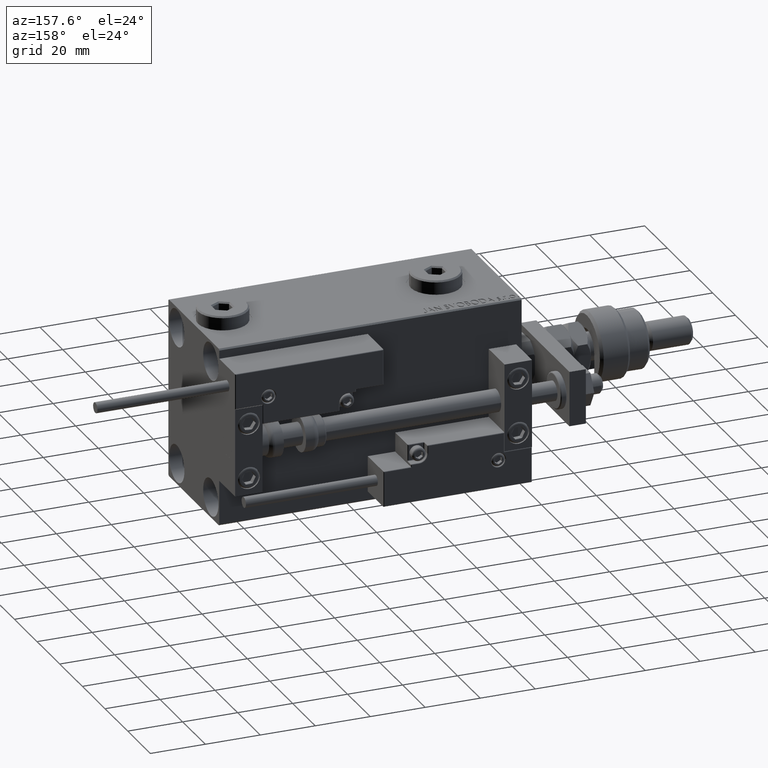
[diagram: clean part render]
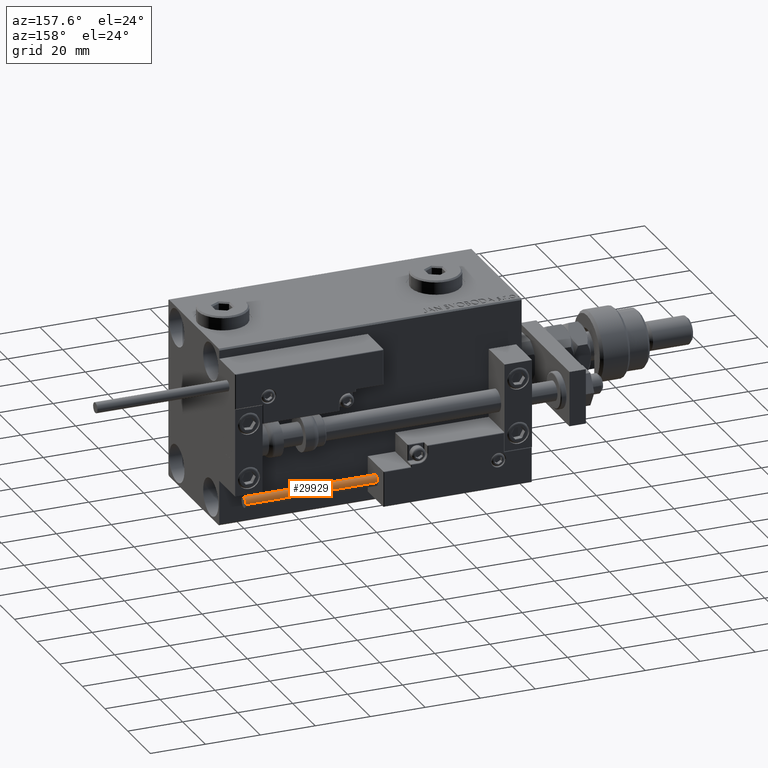
[diagram: same view with one face highlighted and labeled with its STEP entity id]
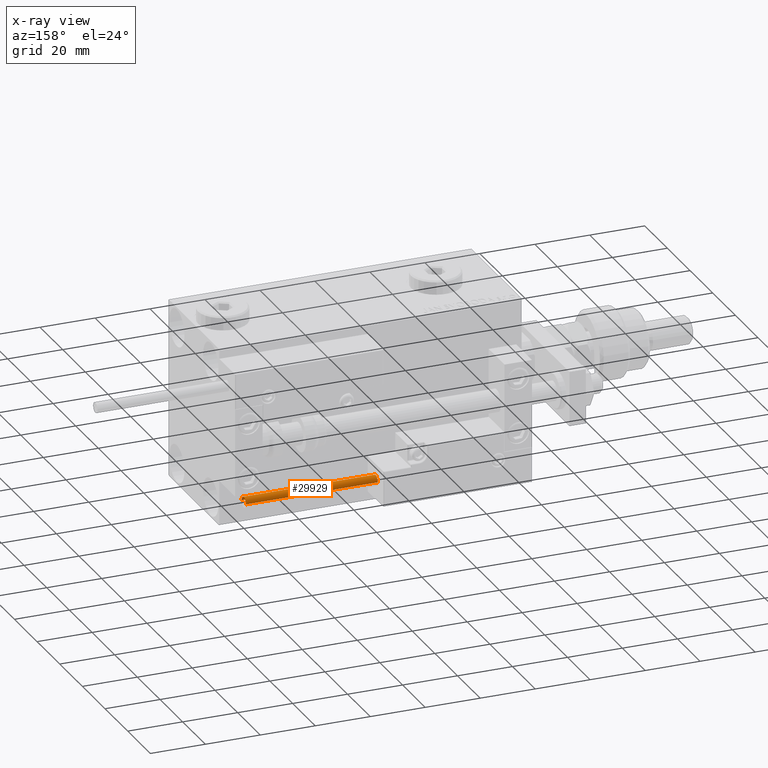
[diagram: x-ray of the same camera — body ghosted, the highlighted face saturated]
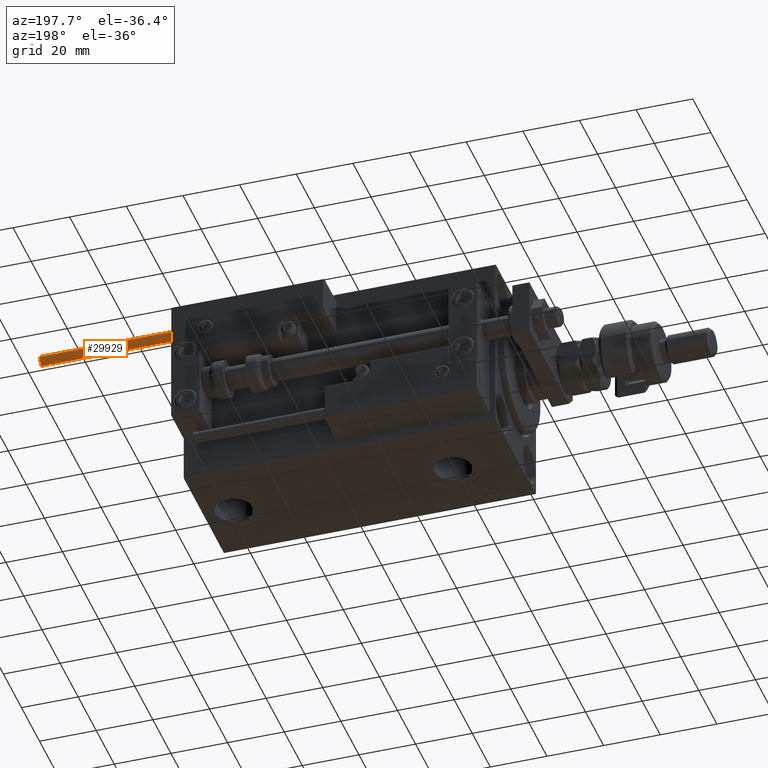
[diagram: same view with one face highlighted and labeled with its STEP entity id]
A machine part, auxiliary view. The second image highlights one B-rep face of the part: STEP entity #29929.
The next image is the same camera in x-ray: the body ghosted, the highlighted face saturated — about 0% of this face is hidden behind the body in this view.
A second angle (auxiliary view) of the same face is appended — the face is thin or edge-on in the first view.
In plain terms, the highlighted cylindrical surface (edge-blend (fillet) strip) has radius 1.9 mm, axis along (-1, -0, 0).
Its self-contained STEP definition (entity closure, byte-faithful):
#942 = EDGE_CURVE ( 'NONE', #24929, #16733, #7941, .T. ) ;
#1034 = CYLINDRICAL_SURFACE ( 'NONE', #50461, 1.899999999999999467 ) ;
#5496 = CARTESIAN_POINT ( 'NONE',  ( -1.899999999999999467, 0.000000000000000000, 48.00000000000000000 ) ) ;
#7459 = VERTEX_POINT ( 'NONE', #35082 ) ;
#7786 = DIRECTION ( 'NONE',  ( 1.000000000000000000, 0.000000000000000000, 0.000000000000000000 ) ) ;
#7941 = LINE ( 'NONE', #8477, #12145 ) ;
#7942 = ORIENTED_EDGE ( 'NONE', *, *, #45944, .F. ) ;
#8267 = EDGE_CURVE ( 'NONE', #16733, #7459, #35787, .T. ) ;
#8477 = CARTESIAN_POINT ( 'NONE',  ( 1.899999999999999467, 2.326828918379970872E-16, 48.00000000000000000 ) ) ;
#8480 = FACE_OUTER_BOUND ( 'NONE', #27502, .T. ) ;
#10404 = DIRECTION ( 'NONE',  ( -0.000000000000000000, -0.000000000000000000, -1.000000000000000000 ) ) ;
#11900 = CARTESIAN_POINT ( 'NONE',  ( 0.000000000000000000, 0.000000000000000000, 48.00000000000000000 ) ) ;
#12145 = VECTOR ( 'NONE', #20594, 1000.000000000000000 ) ;
#13731 = LINE ( 'NONE', #5496, #38513 ) ;
#16470 = AXIS2_PLACEMENT_3D ( 'NONE', #11900, #28663, #7786 ) ;
#16475 = ORIENTED_EDGE ( 'NONE', *, *, #47461, .F. ) ;
#16733 = VERTEX_POINT ( 'NONE', #36328 ) ;
#17351 = AXIS2_PLACEMENT_3D ( 'NONE', #51735, #51466, #52004 ) ;
#18464 = ORIENTED_EDGE ( 'NONE', *, *, #8267, .T. ) ;
#20594 = DIRECTION ( 'NONE',  ( -0.000000000000000000, -0.000000000000000000, -1.000000000000000000 ) ) ;
#21678 = DIRECTION ( 'NONE',  ( -0.000000000000000000, -0.000000000000000000, -1.000000000000000000 ) ) ;
#22226 = DIRECTION ( 'NONE',  ( -1.000000000000000000, 0.000000000000000000, 0.000000000000000000 ) ) ;
#24929 = VERTEX_POINT ( 'NONE', #31650 ) ;
#27502 = EDGE_LOOP ( 'NONE', ( #7942, #41573, #18464, #16475 ) ) ;
#28663 = DIRECTION ( 'NONE',  ( 0.000000000000000000, 0.000000000000000000, 1.000000000000000000 ) ) ;
#29929 = ADVANCED_FACE ( 'NONE', ( #8480 ), #1034, .T. ) ;
#31650 = CARTESIAN_POINT ( 'NONE',  ( 1.899999999999999467, 2.326828918379970872E-16, 48.00000000000000000 ) ) ;
#34036 = CARTESIAN_POINT ( 'NONE',  ( -1.899999999999999467, 0.000000000000000000, 48.00000000000000000 ) ) ;
#35082 = CARTESIAN_POINT ( 'NONE',  ( -1.899999999999999467, 0.000000000000000000, 0.000000000000000000 ) ) ;
#35787 = CIRCLE ( 'NONE', #17351, 1.899999999999999467 ) ;
#36328 = CARTESIAN_POINT ( 'NONE',  ( 1.899999999999999467, 2.326828918379970872E-16, 0.000000000000000000 ) ) ;
#38513 = VECTOR ( 'NONE', #10404, 1000.000000000000000 ) ;
#41573 = ORIENTED_EDGE ( 'NONE', *, *, #942, .T. ) ;
#41915 = CIRCLE ( 'NONE', #16470, 1.899999999999999467 ) ;
#42533 = CARTESIAN_POINT ( 'NONE',  ( 0.000000000000000000, 0.000000000000000000, 48.00000000000000000 ) ) ;
#45007 = VERTEX_POINT ( 'NONE', #34036 ) ;
#45944 = EDGE_CURVE ( 'NONE', #24929, #45007, #41915, .T. ) ;
#47461 = EDGE_CURVE ( 'NONE', #45007, #7459, #13731, .T. ) ;
#50461 = AXIS2_PLACEMENT_3D ( 'NONE', #42533, #21678, #22226 ) ;
#51466 = DIRECTION ( 'NONE',  ( 0.000000000000000000, 0.000000000000000000, 1.000000000000000000 ) ) ;
#51735 = CARTESIAN_POINT ( 'NONE',  ( 0.000000000000000000, 0.000000000000000000, 0.000000000000000000 ) ) ;
#52004 = DIRECTION ( 'NONE',  ( 1.000000000000000000, 0.000000000000000000, 0.000000000000000000 ) ) ;